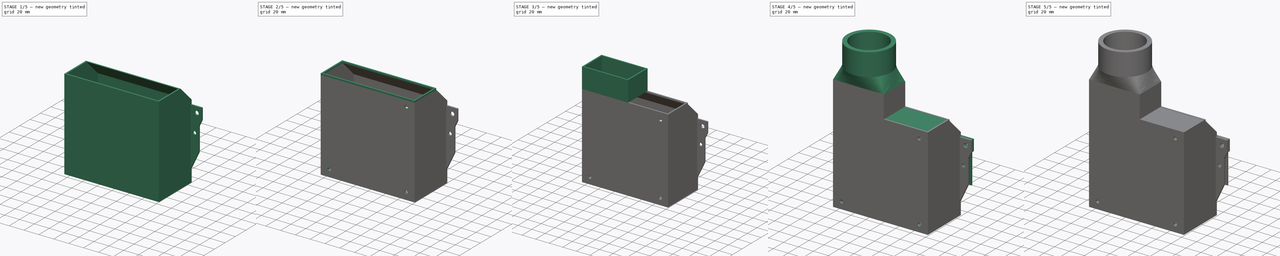
[diagram: build sequence overview — one tinted view per stage of 5, left to right]
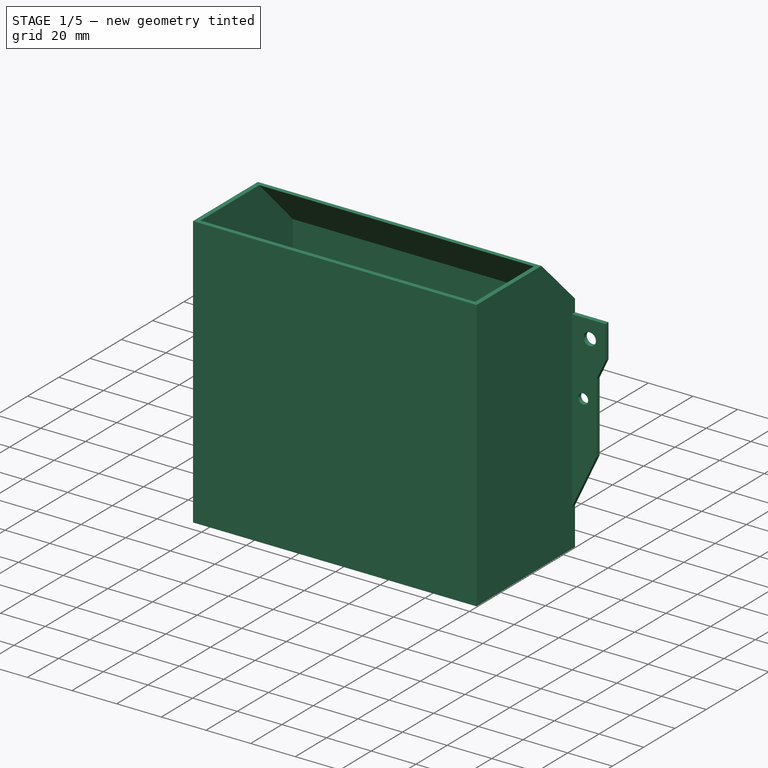
[diagram: stage 1 of 5 — iso view after this stage's code; geometry added in this stage tinted green]
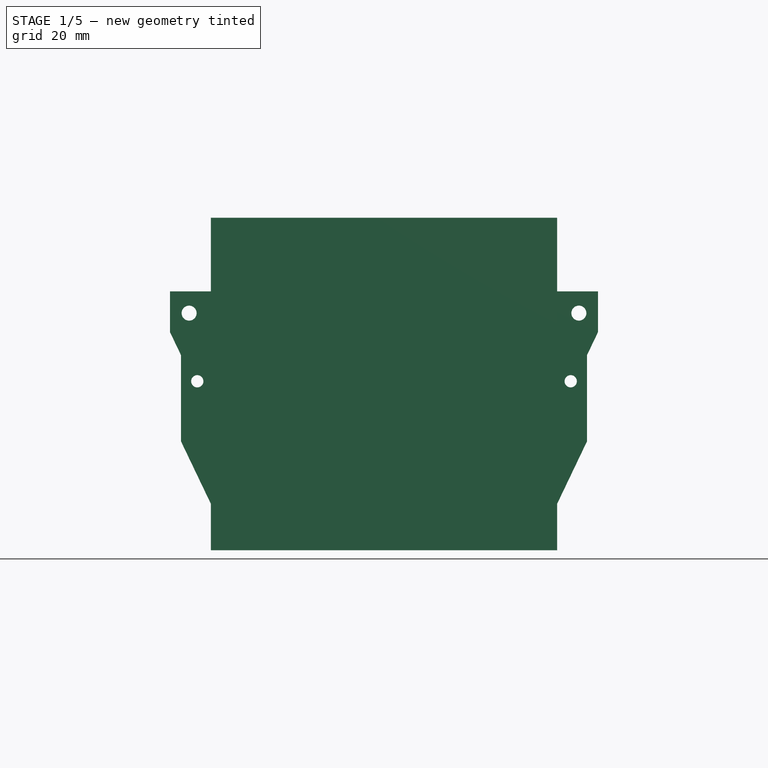
[diagram: stage 1 of 5 — front view after this stage's code; geometry added in this stage tinted green]
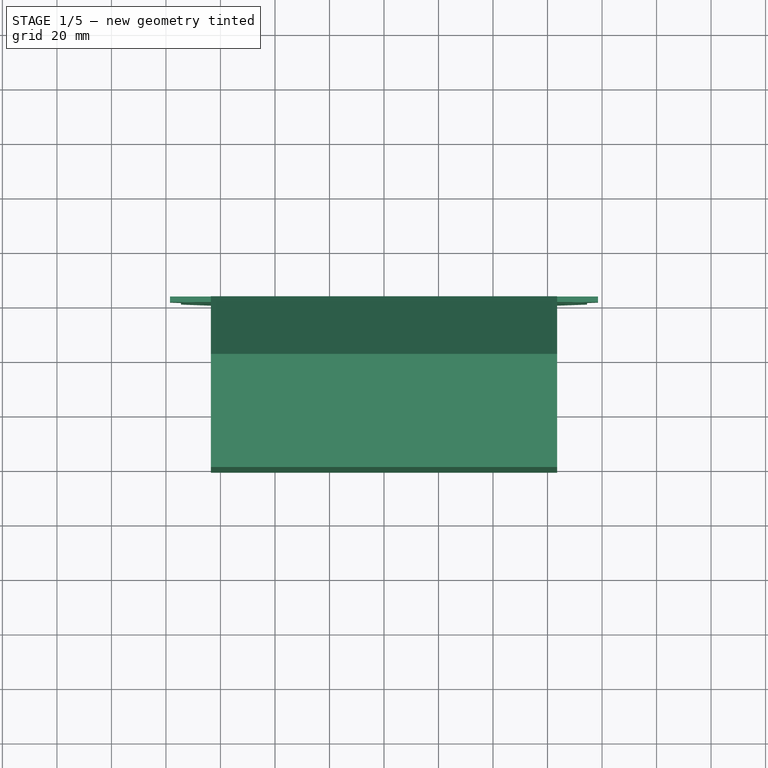
[diagram: stage 1 of 5 — top view after this stage's code; geometry added in this stage tinted green]
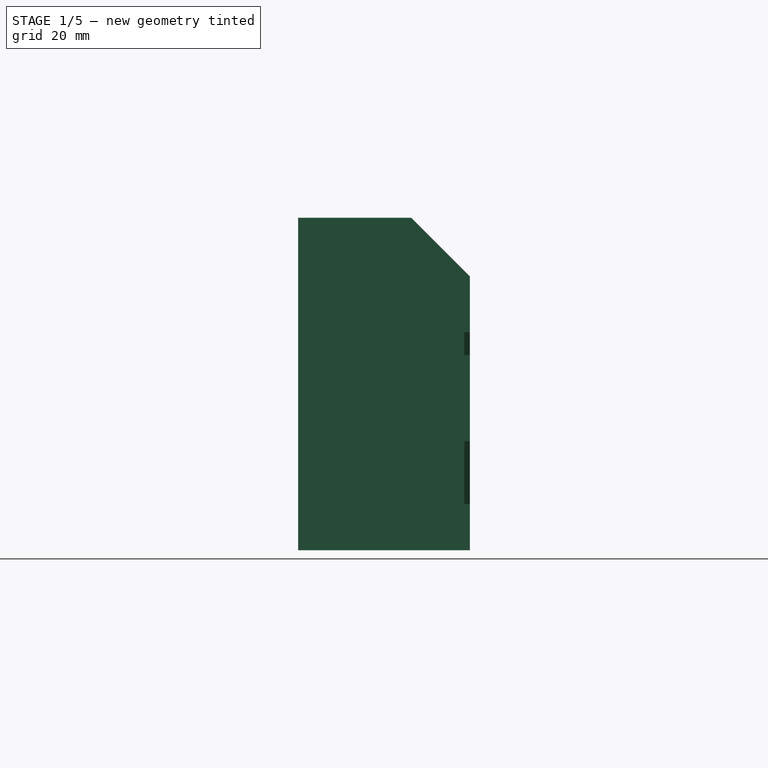
[diagram: stage 1 of 5 — right view after this stage's code; geometry added in this stage tinted green]
FCSTD DOCUMENT  (FreeCAD 0.21R33771 (Git))
Label: RadialExhaust50
License: All rights reserved
LicenseURL: http://en.wikipedia.org/wiki/All_rights_reserved
objects: Sketcher::SketchObject×23, PartDesign::Pad×15, PartDesign::Pocket×8, PartDesign::Body×6, PartDesign::Fillet×2, PartDesign::Hole×1, PartDesign::ShapeBinder×1, PartDesign::AdditiveLoft×1
note: 84 computed .brp shape members not serialized (recipe doc carries the construction recipe); baked Part::Feature solids carry a one-line shape summary decoded from their .brp

FEATURE [Sketcher::SketchObject] Sketch002  label="FanSkrewsSketch"
  AttachmentOffset = pos=(0,0,19) rot=(0,0,1;0rad)
  FullyConstrained = true
  MapMode = 5
  Placement = pos=(0,-19,-4.2e-15) rot=(1,0,0;1.5708rad)
  Support = -> [XZ_Plane]
  expr: .Constraints.top_height_offset = 119 - 7.5
  expr: .Constraints.width_offset = <<FanWallsSketch>>.Constraints.width / 2 - 7.5 mm
  sketch-geometry (3):
    g0: Circle CenterX=-52 CenterY=7.5 CenterZ=0 NormalX=0 NormalY=0 NormalZ=1 AngleXU=0 Radius=2.25
    g1: Circle CenterX=52 CenterY=7.5 CenterZ=0 NormalX=0 NormalY=0 NormalZ=1 AngleXU=0 Radius=2.25
    g2: Circle CenterX=52 CenterY=111.5 CenterZ=0 NormalX=0 NormalY=0 NormalZ=1 AngleXU=0 Radius=2.25
  constraints (8):
    c: Equal(g0,g1)
    c: Equal(g0,g2)
    c: Diameter(g0) = 4.5  'dia'
    c: DistanceX(g0,g-1) = 52  'width_offset'
    c: Symmetric(g0,g1,g-2)
    c: DistanceY(g-1,g0) = 7.5  'height_offset'
    c: Vertical(g2,g1)
    c: DistanceY(g-1,g2) = 111.5  'top_height_offset'
FEATURE [Sketcher::SketchObject] Sketch003  label="FanInntakeSketch"
  AttachmentOffset = pos=(0,0,-16.5) rot=(0,0,1;0rad)
  FullyConstrained = true
  MapMode = 5
  Placement = pos=(0,16.5,3.7e-15) rot=(1,0,0;1.5708rad)
  Support = -> [XZ_Plane]
  expr: .AttachmentOffset.Base.z = <<FanWallsSketch>>.Constraints.depth / -2
  expr: Constraints[6] = 59.5 - 14
  sketch-geometry (4):
    g0: LineSegment StartX=-45.5 StartY=106 StartZ=0 EndX=45.5 EndY=106 EndZ=0
    g1: LineSegment StartX=45.5 StartY=106 StartZ=0 EndX=45.5 EndY=15 EndZ=0
    g2: LineSegment StartX=45.5 StartY=15 StartZ=0 EndX=-45.5 EndY=15 EndZ=0
    g3: LineSegment StartX=-45.5 StartY=15 StartZ=0 EndX=-45.5 EndY=106 EndZ=0
  constraints (11):
    c: Coincident(g0,g1)
    c: Coincident(g3,g0)
    c: Horizontal(g2)
    c: Vertical(g1)
    c: Vertical(g3)
    c: Symmetric(g0,g0,g-2)
    c: DistanceX(g0,g-1) = 45.5
    c: Coincident(g2,g3)
    c: Coincident(g2,g1)
    c: DistanceY(g-1,g0) = 106
    c: DistanceY(g-1,g2) = 15
FEATURE [Sketcher::SketchObject] Sketch005  label="FloorSketch"
  FullyConstrained = true
  MapMode = 5
  Support = -> [XY_Plane001]
  expr: .Constraints.depth_offset = <<FanWallsSketch>>.Constraints.depth / 2 + 4 mm
  expr: .Constraints.width = <<FanWallsSketch>>.Constraints.width + 4 mm + 4 mm
  expr: Constraints[10] = <<FanWallsSketch>>.Constraints.depth / 2 + 4 mm + 20 mm + 2 mm
  sketch-geometry (4):
    g0: LineSegment StartX=-63.5 StartY=42.5 StartZ=0 EndX=63.5 EndY=42.5 EndZ=0
    g1: LineSegment StartX=63.5 StartY=42.5 StartZ=0 EndX=63.5 EndY=-20.5 EndZ=0
    g2: LineSegment StartX=63.5 StartY=-20.5 StartZ=0 EndX=-63.5 EndY=-20.5 EndZ=0
    g3: LineSegment StartX=-63.5 StartY=-20.5 StartZ=0 EndX=-63.5 EndY=42.5 EndZ=0
  constraints (12):
    c: Coincident(g0,g1)
    c: Coincident(g1,g2)
    c: Coincident(g2,g3)
    c: Coincident(g3,g0)
    c: Horizontal(g2)
    c: Vertical(g1)
    c: Vertical(g3)
    c: DistanceX(g0,g0) = 127  'width'
    c: Symmetric(g0,g0,g-2)
    c: DistanceY(g1,g-1) = 20.5  'depth_offset'
    c: DistanceY(g-1,g0) = 42.5
    c: DistanceY(g3,g3) = 63  'depth'
FEATURE [PartDesign::Pad] Pad002  label="FloorPad"
  Direction = (0,0,1)
  Length = 2
  Length2 = 10
  Profile = -> Sketch005
  ReferenceAxis = -> Sketch005 [N_Axis]
  Reversed = true
  Type = 0
FEATURE [Sketcher::SketchObject] Sketch006  label="WallsSketch"
  FullyConstrained = true
  MapMode = 5
  Support = -> [XY_Plane001]
  expr: .Constraints.depth = <<FloorSketch>>.Constraints.depth
  expr: Constraints[8] = <<FloorSketch>>.Constraints.depth_offset
  expr: Constraints[9] = <<FloorSketch>>.Constraints.width
  sketch-geometry (8):
    g0: LineSegment StartX=-63.5 StartY=42.5 StartZ=0 EndX=63.5 EndY=42.5 EndZ=0
    g1: LineSegment StartX=63.5 StartY=42.5 StartZ=0 EndX=63.5 EndY=-20.5 EndZ=0
    g2: LineSegment StartX=63.5 StartY=-20.5 StartZ=0 EndX=-63.5 EndY=-20.5 EndZ=0
    g3: LineSegment StartX=-63.5 StartY=-20.5 StartZ=0 EndX=-63.5 EndY=42.5 EndZ=0
    g4: LineSegment StartX=-61.5 StartY=40.5 StartZ=0 EndX=61.5 EndY=40.5 EndZ=0
    g5: LineSegment StartX=61.5 StartY=40.5 StartZ=0 EndX=61.5 EndY=-18.5 EndZ=0
    g6: LineSegment StartX=61.5 StartY=-18.5 StartZ=0 EndX=-61.5 EndY=-18.5 EndZ=0
    g7: LineSegment StartX=-61.5 StartY=-18.5 StartZ=0 EndX=-61.5 EndY=40.5 EndZ=0
  constraints (24):
    c: Coincident(g0,g1)
    c: Coincident(g1,g2)
    c: Coincident(g2,g3)
    c: Coincident(g3,g0)
    c: Horizontal(g2)
    c: Vertical(g1)
    c: Vertical(g3)
    c: Symmetric(g0,g0,g-2)
    c: DistanceY(g2,g-1) = 20.5
    c: DistanceX(g0,g0) = 127
    c: DistanceY(g1,g1) = 63  'depth'
    c: Coincident(g4,g5)
    c: Coincident(g5,g6)
    c: Coincident(g6,g7)
    c: Coincident(g7,g4)
    c: Horizontal(g4)
    c: Horizontal(g6)
    c: Vertical(g5)
    c: Vertical(g7)
    c: DistanceX(g0,g4) = 2
    c: DistanceY(g4,g0) = 2
    c: DistanceY(g1,g5) = 2
    c: DistanceX(g5,g1) = 2
    c: DistanceX(g4,g4) = 123
FEATURE [PartDesign::Pad] Pad003  label="WallsPad"
  BaseFeature = -> Pad002
  Direction = (0,0,1)
  Length = 120
  Length2 = 10
  Profile = -> Sketch006
  ReferenceAxis = -> Sketch006 [N_Axis]
  Type = 0
FEATURE [Sketcher::SketchObject] Sketch007  label="CornerCutSketch"
  FullyConstrained = true
  MapMode = 5
  Placement = pos=(0,0,0) rot=(0.57735,0.57735,0.57735;2.0944rad)
  Support = -> [YZ_Plane001]
  expr: .Constraints.corner_width = <<WallsSketch>>.Constraints.depth - 4 mm - 37 mm
  expr: Constraints[8] = .Constraints.corner_width
  sketch-geometry (3):
    g0: LineSegment StartX=43 StartY=120 StartZ=0 EndX=21 EndY=120 EndZ=0
    g1: LineSegment StartX=21 StartY=120 StartZ=0 EndX=43 EndY=98 EndZ=0
    g2: LineSegment StartX=43 StartY=98 StartZ=0 EndX=43 EndY=120 EndZ=0
  constraints (9):
    c: Horizontal(g0)
    c: Coincident(g0,g1)
    c: Coincident(g1,g2)
    c: Coincident(g2,g0)
    c: Vertical(g2)
    c: DistanceX(g-1,g0) = 43  'corner_width_offset'
    c: DistanceY(g-1,g0) = 120  'corner_height_offset'
    c: DistanceX(g0,g0) = 22  'corner_width'
    c: DistanceY(g2,g2) = 22
FEATURE [PartDesign::Pocket] Pocket003  label="CornerCut"
  BaseFeature = -> Pad003
  Direction = (-1,2e-16,-3e-16)
  Length = 150
  Length2 = 5
  Midplane = true
  Profile = -> Sketch007
  ReferenceAxis = -> Sketch007 [N_Axis]
  Type = 0
FEATURE [Sketcher::SketchObject] Sketch008  label="CornerPadSketch"
  FullyConstrained = true
  MapMode = 5
  Placement = pos=(0,0,0) rot=(0.57735,0.57735,0.57735;2.0944rad)
  Support = -> [YZ_Plane001]
  expr: Constraints[10] = <<CornerCutSketch>>.Constraints.corner_height_offset
  expr: Constraints[11] = <<CornerCutSketch>>.Constraints.corner_width_offset
  expr: Constraints[12] = <<CornerCutSketch>>.Constraints.corner_width
  expr: Constraints[13] = <<CornerCutSketch>>.Constraints.corner_width
  sketch-geometry (5):
    g0: LineSegment StartX=21 StartY=120 StartZ=0 EndX=42.5 EndY=98 EndZ=0
    g1: LineSegment StartX=42.5 StartY=98 StartZ=0 EndX=42.5 EndY=96 EndZ=0
    g2: LineSegment StartX=42.5 StartY=96 StartZ=0 EndX=19 EndY=120 EndZ=0
    g3: LineSegment StartX=19 StartY=120 StartZ=0 EndX=21 EndY=120 EndZ=0
    g4: GeomPoint X=43 Y=120 Z=0
  constraints (14):
    c: Coincident(g0,g1)
    c: Vertical(g1)
    c: Coincident(g1,g2)
    c: Coincident(g2,g3)
    c: Coincident(g3,g0)
    c: Horizontal(g3)
    c: DistanceY(g-1,g0) = 120
    c: DistanceX(g-1,g0) = 42.5
    c: DistanceX(g3,g3) = 2
    c: DistanceY(g1,g1) = 2
    c: DistanceY(g-1,g4) = 120
    c: DistanceX(g-1,g4) = 43
    c: DistanceX(g0,g4) = 22
    c: DistanceY(g0,g4) = 22
FEATURE [PartDesign::Pad] Pad004  label="CornerPad"
  BaseFeature = -> Pocket003
  Direction = (1,-2e-16,3e-16)
  Length = 127
  Length2 = 10
  Midplane = true
  Profile = -> Sketch008
  ReferenceAxis = -> Sketch008 [N_Axis]
  Type = 0
FEATURE [PartDesign::Pad] Pad009  label="Connector"
  BaseFeature = -> Pad004
  Direction = (0,-1,-2e-16)
  Length = 2
  Length2 = 10
  Profile = -> Sketch010
  ReferenceAxis = -> Sketch010 [N_Axis]
  Type = 0
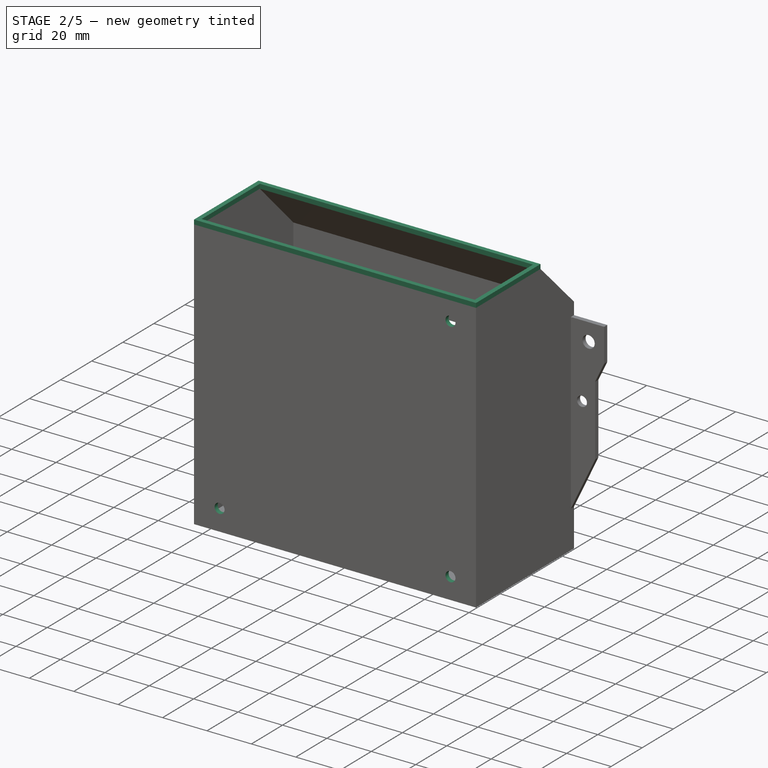
[diagram: stage 2 of 5 — iso view after this stage's code; geometry added in this stage tinted green]
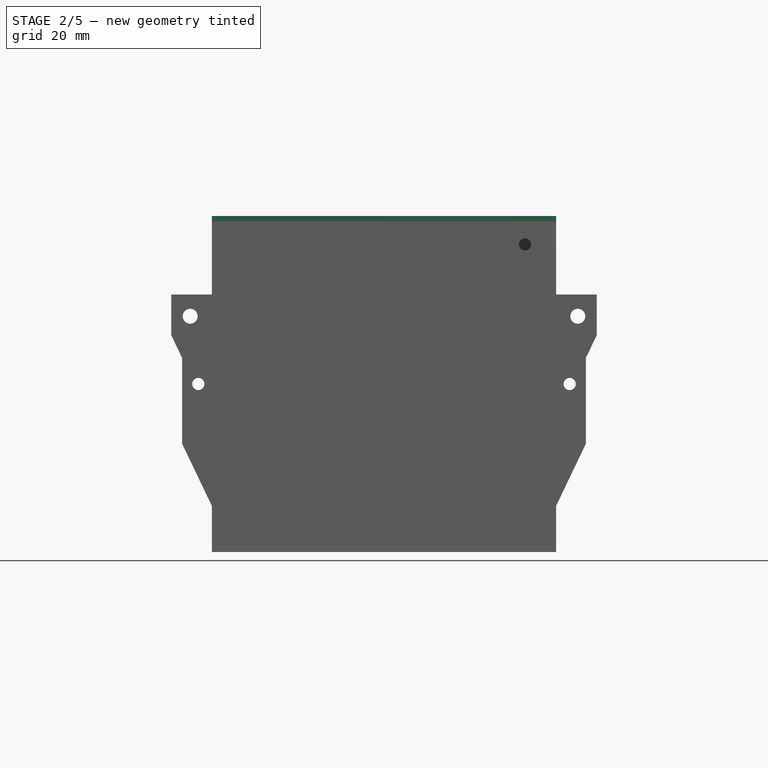
[diagram: stage 2 of 5 — front view after this stage's code; geometry added in this stage tinted green]
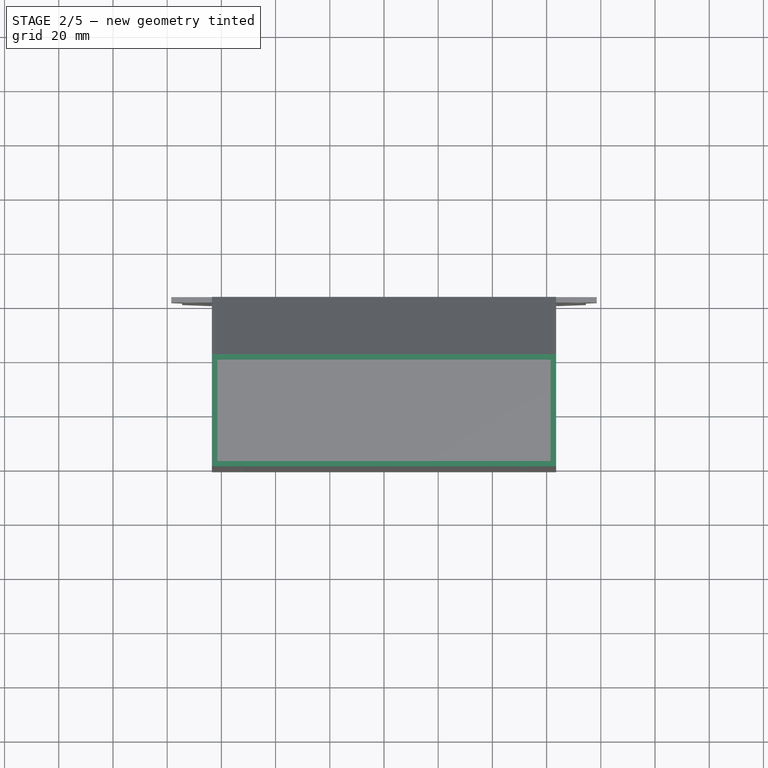
[diagram: stage 2 of 5 — top view after this stage's code; geometry added in this stage tinted green]
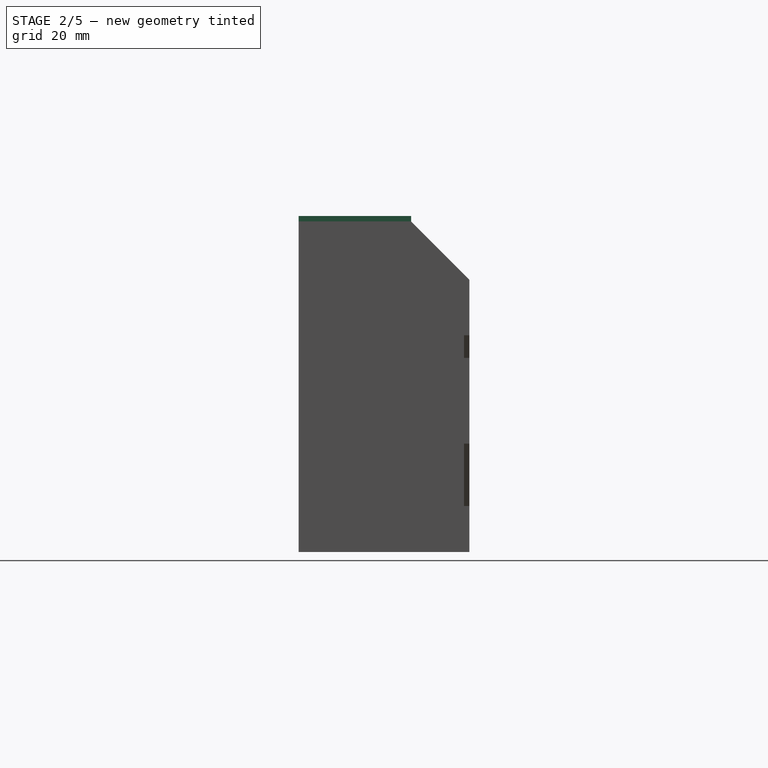
[diagram: stage 2 of 5 — right view after this stage's code; geometry added in this stage tinted green]
FEATURE [PartDesign::Pocket] Pocket005  label="Skrewhole"
  BaseFeature = -> Pad009
  Direction = (0,1,2e-16)
  Length = 4
  Length2 = 5
  Profile = -> Sketch011
  ReferenceAxis = -> Sketch011 [N_Axis]
  Type = 0
FEATURE [PartDesign::Pocket] Pocket007  label="BowdenSkrew"
  BaseFeature = -> Pocket005
  Direction = (-1,2e-16,-3e-16)
  Length = 5
  Length2 = 5
  Midplane = true
  Profile = -> Sketch014
  ReferenceAxis = -> Sketch014 [N_Axis]
  Type = 0
FEATURE [PartDesign::Fillet] Fillet
  Base = -> Pocket007
  BaseFeature = -> Pocket007
  Radius = 1
  SupportTransform = false
  UseAllEdges = false
FEATURE [Sketcher::SketchObject] Sketch023  label="ConnectorWindow"
  FullyConstrained = true
  MapMode = 5
  Placement = pos=(0,42.5,0) rot=(0,0.707107,0.707107;3.14159rad)
  sketch-geometry (5):
    g0: LineSegment StartX=-61.5 StartY=77 StartZ=0 EndX=-61.5 EndY=43 EndZ=0
    g1: LineSegment StartX=-61.5 StartY=43 StartZ=0 EndX=61.5 EndY=43 EndZ=0
    g2: LineSegment StartX=61.5 StartY=43 StartZ=0 EndX=61.5 EndY=77 EndZ=0
    g3: LineSegment StartX=61.5 StartY=77 StartZ=0 EndX=-61.5 EndY=77 EndZ=0
    g4: GeomPoint X=0 Y=60 Z=0
  constraints (13):
    c: Coincident(g0,g1)
    c: Coincident(g1,g2)
    c: Coincident(g2,g3)
    c: Coincident(g3,g0)
    c: Horizontal(g1)
    c: Horizontal(g3)
    c: Vertical(g0)
    c: Vertical(g2)
    c: Symmetric(g1,g0,g4)
    c: PointOnObject(g4,g-2)
    c: DistanceY(g0,g0) = 34
    c: DistanceY(g-1,g0) = 43
    c: DistanceX(g3,g3) = 123  'width'
FEATURE [PartDesign::Pocket] Pocket010
  BaseFeature = -> Fillet
  Direction = (0,-1,2e-16)
  Length = 4
  Length2 = 5
  Profile = -> Sketch023
  ReferenceAxis = -> Sketch023 [N_Axis]
  Type = 0
FEATURE [Sketcher::SketchObject] Sketch028
  FullyConstrained = true
  MapMode = 5
  Support = -> [Pocket010]
  sketch-geometry (1):
    g0: Circle CenterX=0 CenterY=30 CenterZ=0 NormalX=0 NormalY=0 NormalZ=1 AngleXU=0 Radius=6.5
  constraints (3):
    c: PointOnObject(g0,g-2)
    c: Diameter(g0) = 13
    c: DistanceY(g-1,g0) = 30
FEATURE [PartDesign::Pocket] Pocket011
  BaseFeature = -> Pocket010
  Direction = (0,0,-1)
  Length = 5
  Length2 = 5
  Profile = -> Sketch028
  ReferenceAxis = -> Sketch028 [N_Axis]
  Type = 0
FEATURE [PartDesign::Body] Body005  label="PipeAttachement"
  Group = -> [ShapeBinder,Sketch030,Pad013,Sketch031,AdditiveLoft,Pad014]
  Origin = -> Origin006
  Tip = -> Pad014
FEATURE [PartDesign::Pad] Pad015
  BaseFeature = -> Pocket011
  Direction = (0,0,1)
  Length = 2
  Length2 = 10
  Profile = -> Pocket011 [Face54,Face20,Face61,Face55]
  Type = 0
FEATURE [PartDesign::Body] Body001  label="ConnectorBody"
  Group = -> [Sketch005,Pad002,Sketch006,Pad003,Sketch007,Pocket003,Sketch008,Pad004,Pad009,Sketch010,Sketch011,Pocket005,Sketch014,Pocket007,Fillet,Sketch023,Pocket010,Sketch028,Pocket011,Pad015]
  Origin = -> Origin001
  Tip = -> Pad015
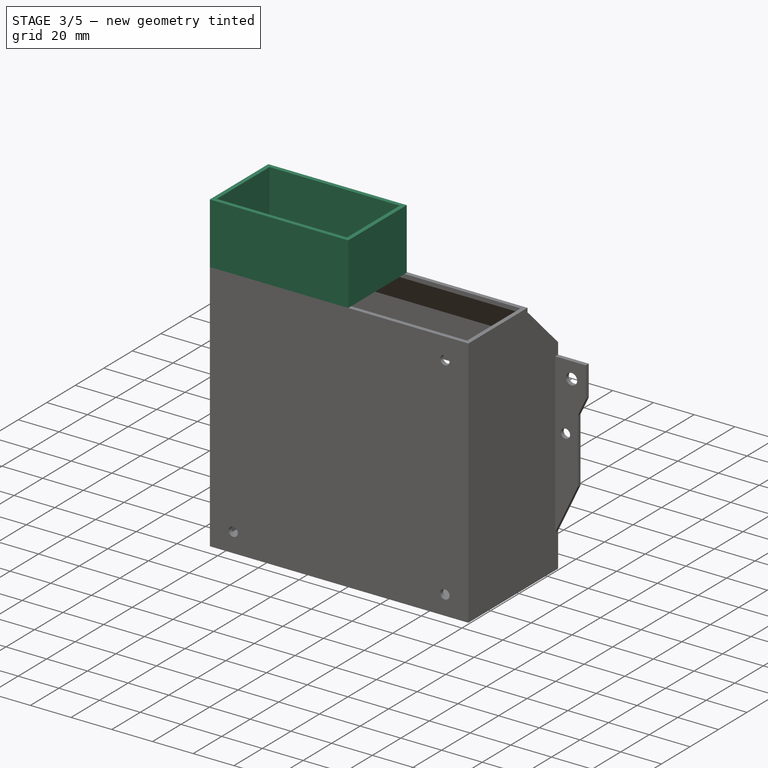
[diagram: stage 3 of 5 — iso view after this stage's code; geometry added in this stage tinted green]
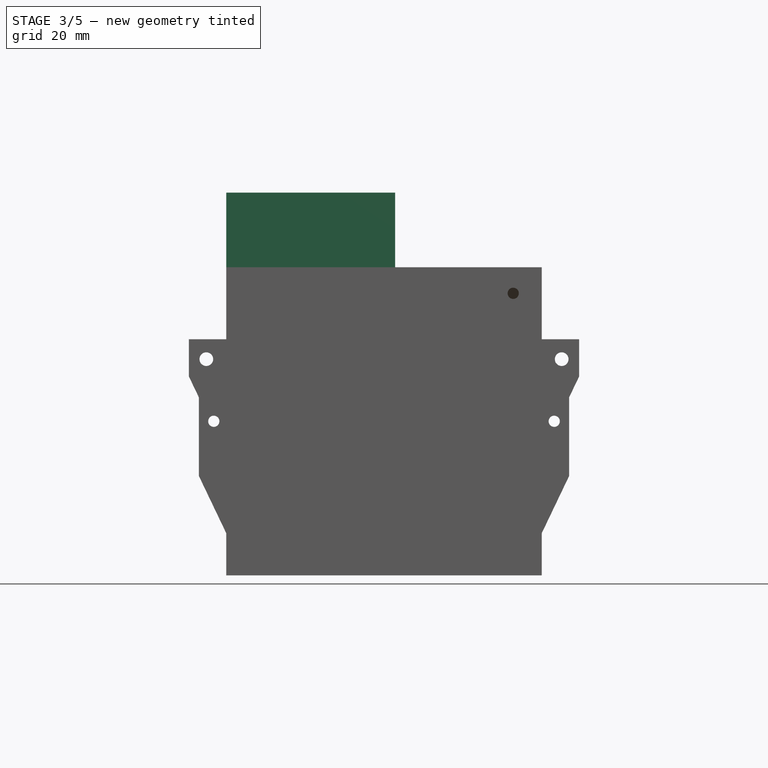
[diagram: stage 3 of 5 — front view after this stage's code; geometry added in this stage tinted green]
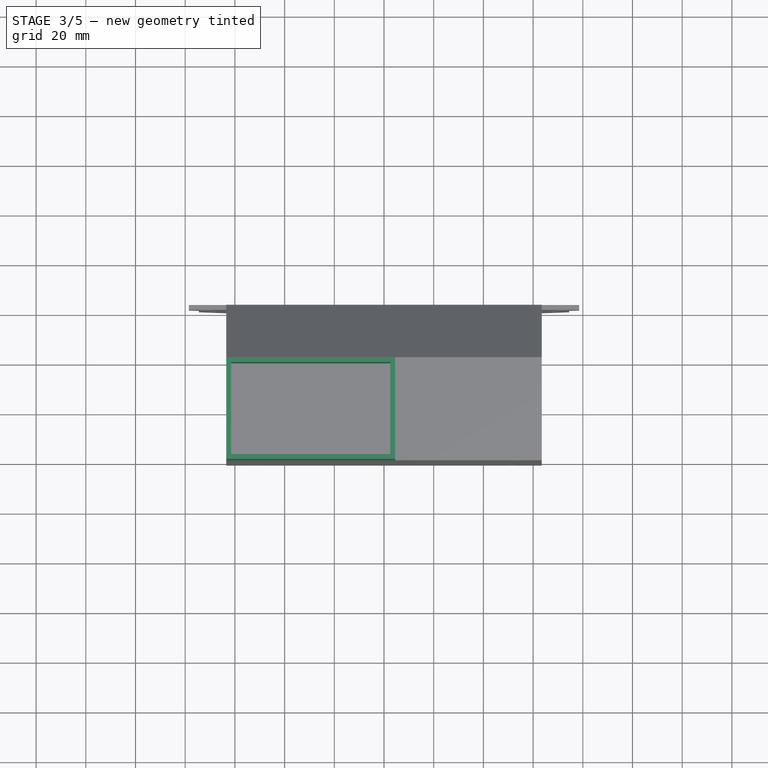
[diagram: stage 3 of 5 — top view after this stage's code; geometry added in this stage tinted green]
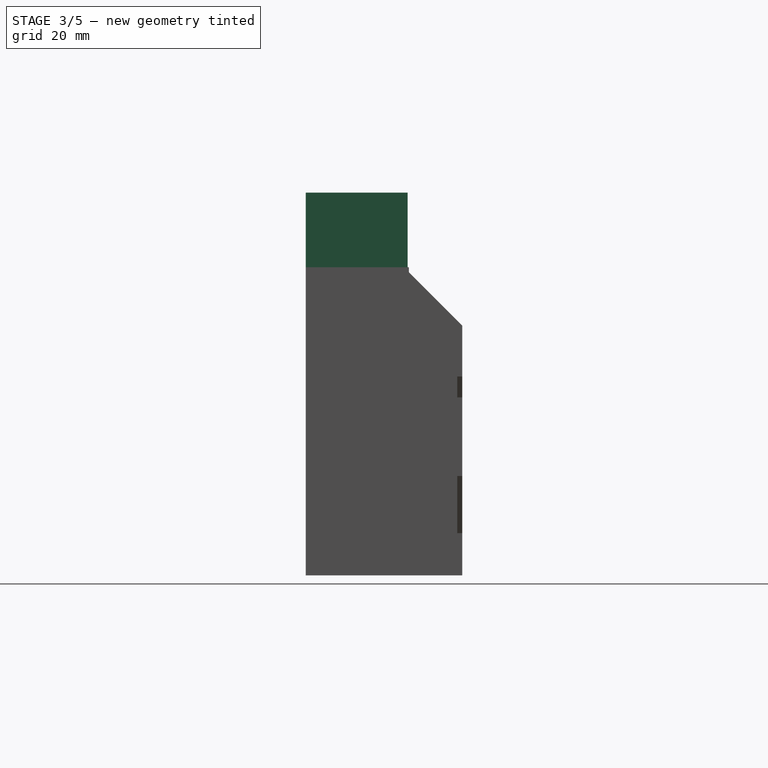
[diagram: stage 3 of 5 — right view after this stage's code; geometry added in this stage tinted green]
FEATURE [Sketcher::SketchObject] Sketch  label="FanWallsSketch"
  FullyConstrained = true
  MapMode = 5
  Support = -> [XY_Plane]
  expr: Constraints[23] = .Constraints.brim
  sketch-geometry (10):
    g0: LineSegment StartX=-59.5 StartY=16.5 StartZ=0 EndX=-59.5 EndY=-16.5 EndZ=0
    g1: LineSegment StartX=-59.5 StartY=-16.5 StartZ=0 EndX=59.5 EndY=-16.5 EndZ=0
    g2: LineSegment StartX=59.5 StartY=-16.5 StartZ=0 EndX=59.5 EndY=16.5 EndZ=0
    g3: LineSegment StartX=59.5 StartY=16.5 StartZ=0 EndX=-59.5 EndY=16.5 EndZ=0
    g4: GeomPoint X=0 Y=0 Z=0
    g5: LineSegment StartX=-61.5 StartY=18.5 StartZ=0 EndX=-61.5 EndY=-18.5 EndZ=0
    g6: LineSegment StartX=-61.5 StartY=-18.5 StartZ=0 EndX=61.5 EndY=-18.5 EndZ=0
    g7: LineSegment StartX=61.5 StartY=-18.5 StartZ=0 EndX=61.5 EndY=18.5 EndZ=0
    g8: LineSegment StartX=61.5 StartY=18.5 StartZ=0 EndX=-61.5 EndY=18.5 EndZ=0
    g9: GeomPoint X=0 Y=0 Z=0
  constraints (24):
    c: Coincident(g0,g1)
    c: Coincident(g1,g2)
    c: Coincident(g2,g3)
    c: Coincident(g3,g0)
    c: Horizontal(g1)
    c: Horizontal(g3)
    c: Vertical(g0)
    c: Vertical(g2)
    c: Symmetric(g1,g0,g4)
    c: Coincident(g4,g-1)
    c: DistanceX(g3,g3) = 119  'width'
    c: DistanceY(g0,g0) = 33  'depth'
    c: Coincident(g5,g6)
    c: Coincident(g6,g7)
    c: Coincident(g7,g8)
    c: Coincident(g8,g5)
    c: Horizontal(g6)
    c: Horizontal(g8)
    c: Vertical(g5)
    c: Vertical(g7)
    c: Symmetric(g6,g5,g9)
    c: Coincident(g9,g4)
    c: DistanceX(g5,g0) = 2  'brim'
    c: DistanceY(g0,g5) = 2
FEATURE [PartDesign::Pad] Pad001  label="Walls"
  Direction = (0,0,1)
  Length = 120
  Length2 = 10
  Profile = -> Sketch
  ReferenceAxis = -> Sketch [N_Axis]
  Type = 0
FEATURE [PartDesign::Body] Body003  label="BowdenAttachment"
  Group = -> [Sketch015,Pad007,Sketch016,Pad008,Sketch018,Hole,Fillet001]
  Origin = -> Origin004
  Tip = -> Fillet001
FEATURE [PartDesign::Pocket] Pocket001  label="FanInntake"
  AlongSketchNormal = false
  BaseFeature = -> Pad001
  Direction = (0,1,2e-16)
  Length = 5
  Length2 = 5
  Profile = -> Sketch003
  ReferenceAxis = -> Sketch003 [N_Axis]
  Type = 0
FEATURE [PartDesign::Pocket] Pocket  label="FanSkrews"
  BaseFeature = -> Pocket001
  Direction = (0,1,2e-16)
  Length = 4
  Length2 = 5
  Profile = -> Sketch002
  ReferenceAxis = -> Sketch002 [N_Axis]
  Type = 0
FEATURE [PartDesign::Body] Body004  label="Body"
  Group = -> [Sketch025,Pad011]
  Origin = -> Origin005
  Tip = -> Pad011
FEATURE [Sketcher::SketchObject] Sketch026  label="TopSketch"
  ExternalGeometry = -> [Pocket]
  FullyConstrained = true
  MapMode = 5
  Placement = pos=(0,0,120) rot=(0,0,1;0rad)
  Support = -> [Pocket]
  sketch-geometry (8):
    g0: LineSegment StartX=-59.5 StartY=16.5 StartZ=0 EndX=0.5 EndY=16.5 EndZ=0
    g1: LineSegment StartX=0.5 StartY=16.5 StartZ=0 EndX=0.5 EndY=-16.5 EndZ=0
    g2: LineSegment StartX=0.5 StartY=-16.5 StartZ=0 EndX=-59.5 EndY=-16.5 EndZ=0
    g3: LineSegment StartX=-59.5 StartY=-16.5 StartZ=0 EndX=-59.5 EndY=16.5 EndZ=0
    g4: LineSegment StartX=-61.5 StartY=18.5 StartZ=0 EndX=61.5 EndY=18.5 EndZ=0
    g5: LineSegment StartX=61.5 StartY=18.5 StartZ=0 EndX=61.5 EndY=-18.5 EndZ=0
    g6: LineSegment StartX=61.5 StartY=-18.5 StartZ=0 EndX=-61.5 EndY=-18.5 EndZ=0
    g7: LineSegment StartX=-61.5 StartY=-18.5 StartZ=0 EndX=-61.5 EndY=18.5 EndZ=0
  constraints (21):
    c: Coincident(g0,g1)
    c: Coincident(g1,g2)
    c: Coincident(g2,g3)
    c: Coincident(g3,g0)
    c: Horizontal(g0)
    c: Horizontal(g2)
    c: Vertical(g1)
    c: Vertical(g3)
    c: Coincident(g0,g-4)
    c: PointOnObject(g1,g-6)
    c: Coincident(g4,g5)
    c: Coincident(g5,g6)
    c: Coincident(g6,g7)
    c: Coincident(g7,g4)
    c: Horizontal(g4)
    c: Horizontal(g6)
    c: Vertical(g5)
    c: Vertical(g7)
    c: Coincident(g4,g-5)
    c: DistanceX(g0,g0) = 60
    c: Coincident(g5,g-7)
FEATURE [PartDesign::Pad] Pad  label="TopPad"
  BaseFeature = -> Pocket
  Direction = (0,0,1)
  Length = 2
  Length2 = 10
  Profile = -> Sketch026
  ReferenceAxis = -> Sketch026 [N_Axis]
  Type = 0
FEATURE [PartDesign::Body] Body  label="FanBody"
  Group = -> [Sketch,Pad001,Sketch002,Sketch003,Pocket001,Pocket,Sketch026,Pad,Sketch029,Pad012]
  Origin = -> Origin
  Tip = -> Pad012
FEATURE [PartDesign::ShapeBinder] ShapeBinder
  Placement = pos=(0,0,122) rot=(0,0,1;0rad)
  Support = -> [Sketch029]
  TraceSupport = false
FEATURE [Sketcher::SketchObject] Sketch030
  AttachmentOffset = pos=(0,0,122) rot=(0,0,1;0rad)
  ExternalGeometry = -> [ShapeBinder]
  FullyConstrained = true
  MapMode = 5
  Placement = pos=(0,0,122) rot=(0,0,1;0rad)
  Support = -> [XY_Plane006]
  sketch-geometry (8):
    g0: LineSegment StartX=-61.5 StartY=18.5 StartZ=0 EndX=2.5 EndY=18.5 EndZ=0
    g1: LineSegment StartX=2.5 StartY=18.5 StartZ=0 EndX=2.5 EndY=-18.5 EndZ=0
    g2: LineSegment StartX=2.5 StartY=-18.5 StartZ=0 EndX=-61.5 EndY=-18.5 EndZ=0
    g3: LineSegment StartX=-61.5 StartY=-18.5 StartZ=0 EndX=-61.5 EndY=18.5 EndZ=0
    g4: LineSegment StartX=-63.5 StartY=20.5 StartZ=0 EndX=4.5 EndY=20.5 EndZ=0
    g5: LineSegment StartX=4.5 StartY=20.5 StartZ=0 EndX=4.5 EndY=-20.5 EndZ=0
    g6: LineSegment StartX=4.5 StartY=-20.5 StartZ=0 EndX=-63.5 EndY=-20.5 EndZ=0
    g7: LineSegment StartX=-63.5 StartY=-20.5 StartZ=0 EndX=-63.5 EndY=20.5 EndZ=0
  constraints (22):
    c: Coincident(g0,g1)
    c: Coincident(g1,g2)
    c: Coincident(g2,g3)
    c: Coincident(g3,g0)
    c: Horizontal(g0)
    c: Horizontal(g2)
    c: Vertical(g1)
    c: Vertical(g3)
    c: Coincident(g0,g-3)
    c: Coincident(g1,g-4)
    c: Coincident(g4,g5)
    c: Coincident(g5,g6)
    c: Coincident(g6,g7)
    c: Coincident(g7,g4)
    c: Horizontal(g4)
    c: Horizontal(g6)
    c: Vertical(g5)
    c: Vertical(g7)
    c: DistanceX(g4,g0) = 2
    c: DistanceY(g0,g4) = 2
    c: DistanceY(g5,g1) = 2
    c: DistanceX(g1,g5) = 2
FEATURE [PartDesign::Pad] Pad013
  Direction = (0,0,1)
  Length = 30
  Length2 = 10
  Profile = -> Sketch030
  ReferenceAxis = -> Sketch030 [N_Axis]
  Type = 0
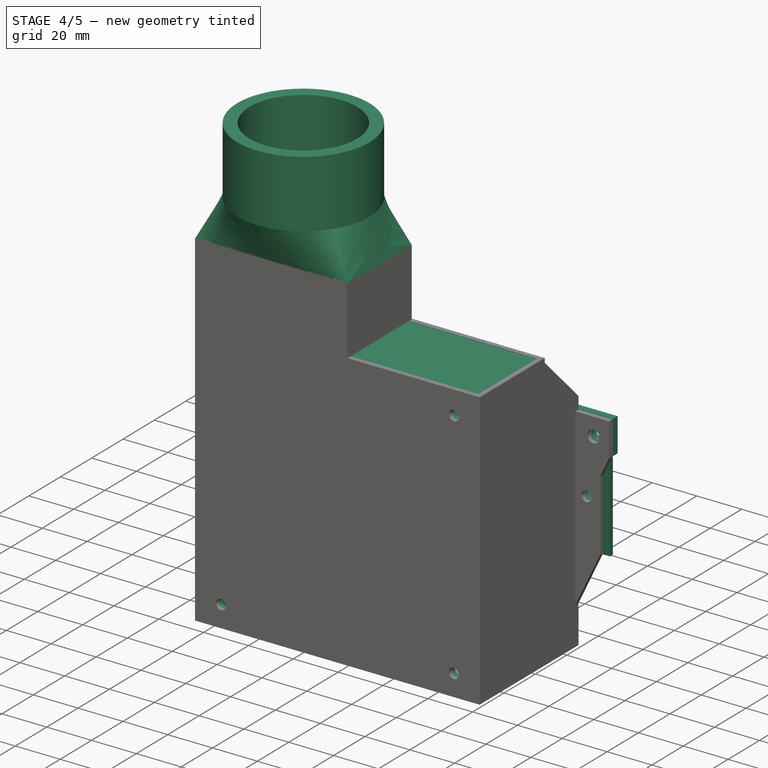
[diagram: stage 4 of 5 — iso view after this stage's code; geometry added in this stage tinted green]
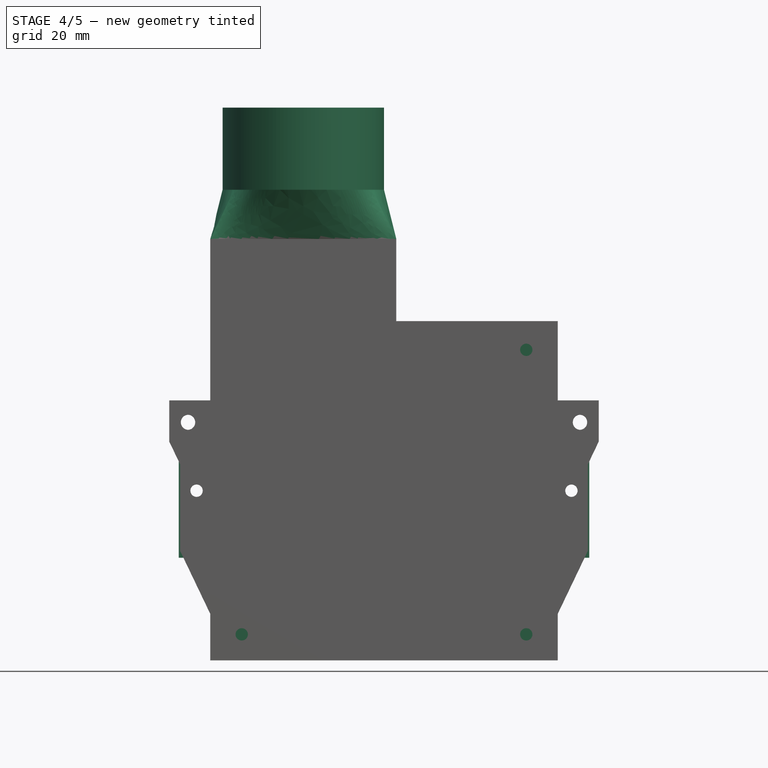
[diagram: stage 4 of 5 — front view after this stage's code; geometry added in this stage tinted green]
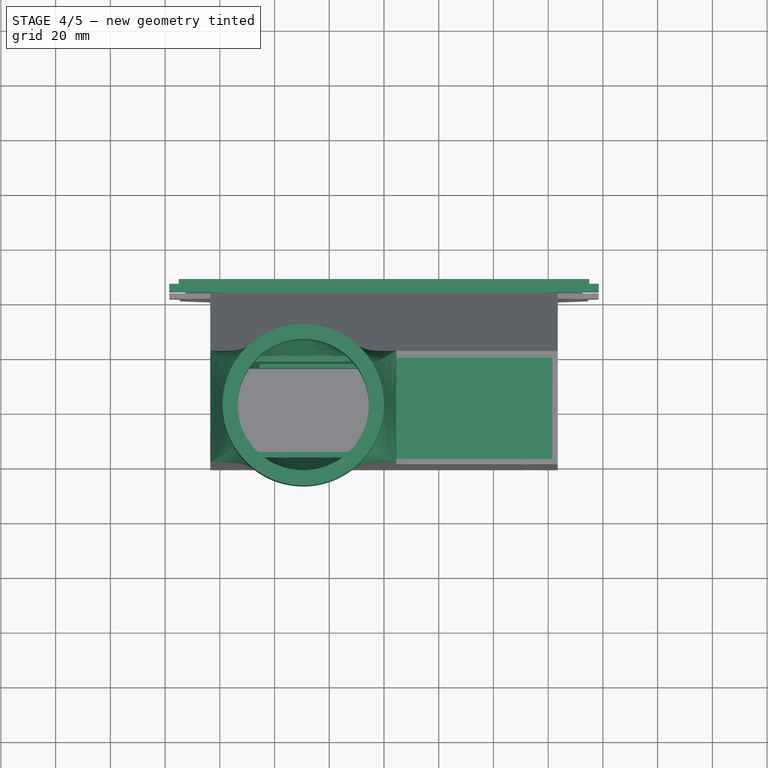
[diagram: stage 4 of 5 — top view after this stage's code; geometry added in this stage tinted green]
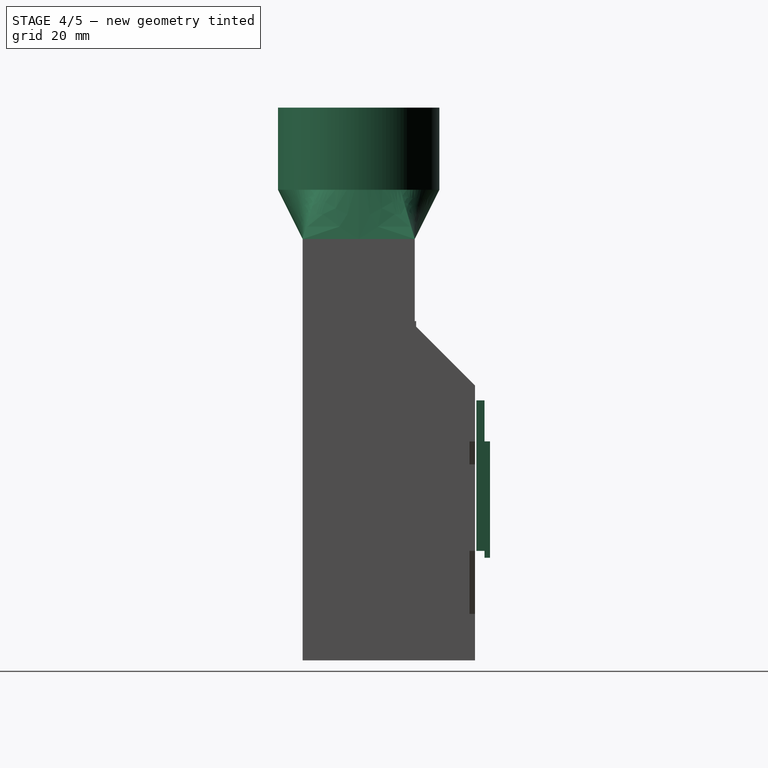
[diagram: stage 4 of 5 — right view after this stage's code; geometry added in this stage tinted green]
FEATURE [Sketcher::SketchObject] Sketch010  label="ConnectorSketch"
  AttachmentOffset = pos=(0,0,-42.5) rot=(0,0,1;0rad)
  FullyConstrained = true
  MapMode = 5
  Placement = pos=(0,42.5,9.4e-15) rot=(1,0,0;1.5708rad)
  Support = -> [XZ_Plane001]
  expr: Constraints[36] = <<ConnectorTapSketch>>.Constraints.bottomWidth + 4 mm
  expr: Constraints[41] = <<ConnectorTapSketch>>.Constraints.earFlipheight
  sketch-geometry (16):
    g0: LineSegment StartX=-78.5 StartY=93 StartZ=0 EndX=78.5 EndY=93 EndZ=0
    g1: LineSegment StartX=74.5 StartY=38 StartZ=0 EndX=63.5 EndY=15 EndZ=0
    g2: LineSegment StartX=-74.5 StartY=38 StartZ=0 EndX=-63.5 EndY=15 EndZ=0
    g3: Circle CenterX=-68.5 CenterY=60 CenterZ=0 NormalX=0 NormalY=0 NormalZ=1 AngleXU=0 Radius=2.25
    g4: Circle CenterX=68.5 CenterY=60 CenterZ=0 NormalX=0 NormalY=0 NormalZ=1 AngleXU=0 Radius=2.25
    g5: Circle CenterX=-71.5 CenterY=85 CenterZ=0 NormalX=0 NormalY=0 NormalZ=1 AngleXU=0 Radius=2.75
    g6: Circle CenterX=71.5 CenterY=85 CenterZ=0 NormalX=0 NormalY=0 NormalZ=1 AngleXU=0 Radius=2.75
    g7: LineSegment StartX=-63.5 StartY=15 StartZ=0 EndX=-63.5 EndY=0 EndZ=0
    g8: LineSegment StartX=63.5 StartY=15 StartZ=0 EndX=63.5 EndY=0 EndZ=0
    g9: LineSegment StartX=63.5 StartY=0 StartZ=0 EndX=-63.5 EndY=0 EndZ=0
    g10: LineSegment StartX=-78.5 StartY=93 StartZ=0 EndX=-78.5 EndY=78 EndZ=0
    g11: LineSegment StartX=-78.5 StartY=78 StartZ=0 EndX=-74.5 EndY=69.6364 EndZ=0
    g12: LineSegment StartX=-74.5 StartY=69.6364 StartZ=0 EndX=-74.5 EndY=38 EndZ=0
    g13: LineSegment StartX=78.5 StartY=93 StartZ=0 EndX=78.5 EndY=78 EndZ=0
    g14: LineSegment StartX=78.5 StartY=78 StartZ=0 EndX=74.5 EndY=69.6364 EndZ=0
    g15: LineSegment StartX=74.5 StartY=69.6364 StartZ=0 EndX=74.5 EndY=38 EndZ=0
  constraints (43):
    c: DistanceX(g0,g0) = 157
    c: Symmetric(g0,g0,g-2)
    c: DistanceY(g-1,g2) = 15
    c: DistanceY(g1,g0) = 78
    c: Symmetric(g2,g1,g-2)
    c: DistanceX(g2,g1) = 127
    c: Symmetric(g2,g1,g-2)
    c: Diameter(g3) = 4.5
    c: Diameter(g4) = 4.5
    c: Symmetric(g3,g4,g-2)
    c: DistanceX(g3,g4) = 137
    c: DistanceY(g-1,g3) = 60
    c: Symmetric(g5,g6,g-2)
    c: Diameter(g5) = 5.5
    c: Diameter(g6) = 5.5
    c: DistanceX(g5,g3) = 3
    c: DistanceY(g4,g6) = 25
    c: DistanceY(g1,g0) = 55
    c: Coincident(g7,g2)
    c: PointOnObject(g7,g-1)
    c: Vertical(g7)
    c: Coincident(g8,g1)
    c: PointOnObject(g8,g-1)
    c: Vertical(g8)
    c: Coincident(g9,g8)
    c: Coincident(g9,g7)
    c: Coincident(g0,g10)
    c: Vertical(g10)
    c: Coincident(g10,g11)
    c: Coincident(g11,g12)
    c: Coincident(g12,g2)
    c: Coincident(g0,g13)
    c: Vertical(g13)
    c: Coincident(g13,g14)
    c: Coincident(g14,g15)
    c: Coincident(g15,g1)
    c: DistanceX(g2,g1) = 149
    c: Parallel(g2,g11)
    c: Vertical(g12)
    c: Vertical(g15)
    c: Horizontal(g10,g13)
    c: DistanceY(g10,g0) = 15
    c: Horizontal(g11,g14)
FEATURE [Sketcher::SketchObject] Sketch011  label="SkrewHoleSketch"
  AttachmentOffset = pos=(0,0,21) rot=(0,0,1;0rad)
  FullyConstrained = true
  MapMode = 5
  Placement = pos=(0,-21,-4.7e-15) rot=(1,0,0;1.5708rad)
  Support = -> [XZ_Plane001]
  expr: Constraints[2] = <<FanSkrewsSketch>>.Constraints.dia
  expr: Constraints[3] = <<FanSkrewsSketch>>.Constraints.height_offset
  expr: Constraints[6] = <<FanSkrewsSketch>>.Constraints.top_height_offset
  expr: Constraints[7] = <<FanSkrewsSketch>>.Constraints.width_offset
  sketch-geometry (3):
    g0: Circle CenterX=52 CenterY=111.5 CenterZ=0 NormalX=0 NormalY=0 NormalZ=1 AngleXU=0 Radius=2.25
    g1: Circle CenterX=52 CenterY=7.5 CenterZ=0 NormalX=0 NormalY=0 NormalZ=1 AngleXU=0 Radius=2.25
    g2: Circle CenterX=-52 CenterY=7.5 CenterZ=0 NormalX=0 NormalY=0 NormalZ=1 AngleXU=0 Radius=2.25
  constraints (8):
    c: Equal(g2,g1)
    c: Equal(g2,g0)
    c: Diameter(g2) = 4.5
    c: DistanceY(g-1,g2) = 7.5
    c: Symmetric(g1,g2,g-2)
    c: Vertical(g0,g1)
    c: DistanceY(g-1,g0) = 111.5
    c: DistanceX(g2,g-1) = 52
FEATURE [Sketcher::SketchObject] Sketch012  label="ConnectorTapSketch"
  AttachmentOffset = pos=(0,0,-43) rot=(0,0,1;0rad)
  FullyConstrained = true
  MapMode = 5
  Placement = pos=(0,43,9.5e-15) rot=(1,0,0;1.5708rad)
  Support = -> [XZ_Plane003]
  sketch-geometry (16):
    g0: LineSegment StartX=-78.5 StartY=93 StartZ=0 EndX=78.5 EndY=93 EndZ=0
    g1: LineSegment StartX=72.5 StartY=38 StartZ=0 EndX=-72.5 EndY=38 EndZ=0
    g2: Circle CenterX=-71.75 CenterY=85 CenterZ=0 NormalX=0 NormalY=0 NormalZ=1 AngleXU=0 Radius=2.75
    g3: Circle CenterX=-68.5 CenterY=60 CenterZ=0 NormalX=0 NormalY=0 NormalZ=1 AngleXU=0 Radius=2.25
    g4: Circle CenterX=71.75 CenterY=85 CenterZ=0 NormalX=0 NormalY=0 NormalZ=1 AngleXU=0 Radius=2.75
    g5: Circle CenterX=68.5 CenterY=60 CenterZ=0 NormalX=0 NormalY=0 NormalZ=1 AngleXU=0 Radius=2.25
    g6: LineSegment StartX=-78.5 StartY=93 StartZ=0 EndX=-78.5 EndY=78 EndZ=0
    g7: LineSegment StartX=-78.5 StartY=78 StartZ=0 EndX=-72.5 EndY=78 EndZ=0
    g8: LineSegment StartX=-72.5 StartY=78 StartZ=0 EndX=-72.5 EndY=38 EndZ=0
    g9: LineSegment StartX=78.5 StartY=93 StartZ=0 EndX=78.5 EndY=78 EndZ=0
    g10: LineSegment StartX=72.5 StartY=78 StartZ=0 EndX=78.5 EndY=78 EndZ=0
    g11: LineSegment StartX=72.5 StartY=78 StartZ=0 EndX=72.5 EndY=38 EndZ=0
    g12: LineSegment StartX=-62 StartY=91 StartZ=0 EndX=62 EndY=91 EndZ=0
    g13: LineSegment StartX=62 StartY=91 StartZ=0 EndX=62 EndY=80 EndZ=0
    g14: LineSegment StartX=62 StartY=80 StartZ=0 EndX=-62 EndY=80 EndZ=0
    g15: LineSegment StartX=-62 StartY=80 StartZ=0 EndX=-62 EndY=91 EndZ=0
  constraints (45):
    c: Horizontal(g1)
    c: Symmetric(g0,g0,g-2)
    c: DistanceY(g-1,g1) = 38
    c: DistanceX(g0,g0) = 157
    c: DistanceY(g1,g0) = 55
    c: Diameter(g2) = 5.5
    c: Diameter(g4) = 5.5
    c: Diameter(g5) = 4.5
    c: Diameter(g3) = 4.5
    c: DistanceX(g3,g5) = 137
    c: DistanceX(g2,g4) = 143.5
    c: Symmetric(g4,g2,g-2)
    c: Symmetric(g3,g5,g-2)
    c: DistanceY(g3,g2) = 25
    c: DistanceY(g-1,g3) = 60
    c: Coincident(g6,g0)
    c: Vertical(g6)
    c: Coincident(g7,g6)
    c: Coincident(g8,g7)
    c: Coincident(g8,g1)
    c: Vertical(g8)
    c: Coincident(g9,g0)
    c: Vertical(g9)
    c: Coincident(g10,g9)
    c: Coincident(g11,g10)
    c: Coincident(g11,g1)
    c: Vertical(g11)
    c: Horizontal(g6,g7)
    c: Horizontal(g10,g9)
    c: DistanceX(g7,g10) = 145  'bottomWidth'
    c: Symmetric(g7,g10,g-2)
    c: DistanceY(g6,g6) = 15  'earFlipheight'
    c: Coincident(g12,g13)
    c: Coincident(g13,g14)
    c: Coincident(g14,g15)
    c: Coincident(g15,g12)
    c: Horizontal(g14)
    c: Vertical(g13)
    c: Vertical(g15)
    c: DistanceY(g12,g0) = 2
    c: DistanceY(g6,g14) = 2
    c: Symmetric(g12,g12,g-2)
    c: DistanceX(g12,g12) = 124
    c: DistanceX(g3,g-1) = 68.5  'skrewSideOffset'
    c: DistanceY(g-1,g3) = 60  'skrewHightOffset'
FEATURE [PartDesign::Pad] Pad006  label="ConnectorTapPad"
  Direction = (0,-1,-2e-16)
  Length = 3
  Length2 = 10
  Placement = pos=(0,0,0) rot=(1,0,0;1.5708rad)
  Profile = -> Sketch012
  ReferenceAxis = -> Sketch012 [N_Axis]
  Reversed = true
  Type = 0
FEATURE [Sketcher::SketchObject] Sketch013  label="WindowSketch"
  AttachmentOffset = pos=(0,0,-43) rot=(0,0,1;0rad)
  FullyConstrained = true
  MapMode = 5
  Placement = pos=(0,43,9.5e-15) rot=(1,0,0;1.5708rad)
  Support = -> [XZ_Plane003]
  expr: .Constraints.heightOffset = 60 - 32 / 2
  expr: .Constraints.width = Sketch023.Constraints.width - 2 mm
  sketch-geometry (4):
    g0: LineSegment StartX=-60.5 StartY=76 StartZ=0 EndX=60.5 EndY=76 EndZ=0
    g1: LineSegment StartX=60.5 StartY=76 StartZ=0 EndX=60.5 EndY=44 EndZ=0
    g2: LineSegment StartX=60.5 StartY=44 StartZ=0 EndX=-60.5 EndY=44 EndZ=0
    g3: LineSegment StartX=-60.5 StartY=44 StartZ=0 EndX=-60.5 EndY=76 EndZ=0
  constraints (11):
    c: Coincident(g0,g1)
    c: Coincident(g1,g2)
    c: Coincident(g2,g3)
    c: Coincident(g3,g0)
    c: Horizontal(g2)
    c: Vertical(g1)
    c: Vertical(g3)
    c: Symmetric(g0,g0,g-2)
    c: DistanceX(g0,g0) = 121  'width'
    c: DistanceY(g1,g1) = 32  'height'
    c: DistanceY(g-1,g2) = 44  'heightOffset'
FEATURE [PartDesign::Pocket] Pocket006  label="WindowPocket"
  BaseFeature = -> Pad006
  Direction = (0,1,2e-16)
  Length = 5
  Length2 = 5
  Placement = pos=(0,0,0) rot=(1,0,0;1.5708rad)
  Profile = -> Sketch013
  ReferenceAxis = -> Sketch013 [N_Axis]
  Type = 0
FEATURE [PartDesign::Body] Body002  label="ConnectorTap"
  Group = -> [Sketch012,Pad006,Sketch013,Pocket006,Sketch024,Pad010]
  Origin = -> Origin003
  Tip = -> Pad010
FEATURE [Sketcher::SketchObject] Sketch025
  AttachmentOffset = pos=(0,0,-46) rot=(0,0,1;0rad)
  FullyConstrained = true
  MapMode = 5
  Placement = pos=(0,46,1.02e-14) rot=(1,0,0;1.5708rad)
  Support = -> [XZ_Plane005]
  expr: Constraints[17] = <<ConnectorTapSketch>>.Constraints.skrewSideOffset
  sketch-geometry (11):
    g0: LineSegment StartX=-75 StartY=35.5 StartZ=0 EndX=-75 EndY=78.03 EndZ=0
    g1: LineSegment StartX=-75 StartY=78.03 StartZ=0 EndX=75 EndY=78.03 EndZ=0
    g2: LineSegment StartX=75 StartY=78.03 StartZ=0 EndX=75 EndY=35.5 EndZ=0
    g3: LineSegment StartX=75 StartY=35.5 StartZ=0 EndX=-75 EndY=35.5 EndZ=0
    g4: GeomPoint X=0 Y=57.5 Z=0
    g5: LineSegment StartX=-60.5 StartY=44 StartZ=0 EndX=60.5 EndY=44 EndZ=0
    g6: LineSegment StartX=60.5 StartY=44 StartZ=0 EndX=60.5 EndY=76.16 EndZ=0
    g7: LineSegment StartX=60.5 StartY=76.16 StartZ=0 EndX=-60.5 EndY=76.16 EndZ=0
    g8: LineSegment StartX=-60.5 StartY=76.16 StartZ=0 EndX=-60.5 EndY=44 EndZ=0
    g9: Circle CenterX=-68.5 CenterY=60 CenterZ=0 NormalX=0 NormalY=0 NormalZ=1 AngleXU=0 Radius=2.25
    g10: Circle CenterX=68.5 CenterY=60 CenterZ=0 NormalX=0 NormalY=0 NormalZ=1 AngleXU=0 Radius=2.25
  constraints (29):
    c: Coincident(g0,g1)
    c: Coincident(g1,g2)
    c: Coincident(g2,g3)
    c: Horizontal(g3)
    c: Vertical(g0)
    c: Vertical(g2)
    c: PointOnObject(g4,g-2)
    c: Coincident(g5,g6)
    c: Coincident(g6,g7)
    c: Coincident(g7,g8)
    c: Coincident(g8,g5)
    c: Horizontal(g5)
    c: Vertical(g6)
    c: Vertical(g8)
    c: Coincident(g3,g0)
    c: Equal(g9,g10)
    c: Diameter(g9) = 4.5
    c: DistanceX(g9,g4) = 68.5
    c: Symmetric(g10,g9,g-2)
    c: Symmetric(g7,g6,g-2)
    c: Symmetric(g1,g0,g-2)
    c: DistanceX(g7,g7) = 121
    c: DistanceY(g0,g0) = 42.53
    c: DistanceY(g8,g8) = 32.16
    c: DistanceX(g1,g1) = 150
    c: DistanceY(g4,g9) = 2.5
    c: DistanceY(g4,g7) = 18.66
    c: DistanceY(g4,g0) = 20.53
    c: DistanceY(g-1,g4) = 57.5
FEATURE [PartDesign::Pad] Pad011
  Direction = (0,-1,2e-16)
  Length = 2
  Length2 = 10
  Placement = pos=(0,0,0) rot=(1,0,0;1.5708rad)
  Profile = -> Sketch025
  ReferenceAxis = -> Sketch025 [N_Axis]
  Reversed = true
  Type = 0
FEATURE [Sketcher::SketchObject] Sketch029  label="PipeSketch"
  ExternalGeometry = -> [Pad]
  FullyConstrained = true
  MapMode = 5
  Placement = pos=(0,0,122) rot=(0,0,1;0rad)
  Support = -> [Pad]
  sketch-geometry (8):
    g0: LineSegment StartX=-59.5 StartY=16.5 StartZ=0 EndX=0.5 EndY=16.5 EndZ=0
    g1: LineSegment StartX=0.5 StartY=16.5 StartZ=0 EndX=0.5 EndY=-16.5 EndZ=0
    g2: LineSegment StartX=0.5 StartY=-16.5 StartZ=0 EndX=-59.5 EndY=-16.5 EndZ=0
    g3: LineSegment StartX=-59.5 StartY=-16.5 StartZ=0 EndX=-59.5 EndY=16.5 EndZ=0
    g4: LineSegment StartX=-61.5 StartY=18.5 StartZ=0 EndX=2.5 EndY=18.5 EndZ=0
    g5: LineSegment StartX=2.5 StartY=18.5 StartZ=0 EndX=2.5 EndY=-18.5 EndZ=0
    g6: LineSegment StartX=2.5 StartY=-18.5 StartZ=0 EndX=-61.5 EndY=-18.5 EndZ=0
    g7: LineSegment StartX=-61.5 StartY=-18.5 StartZ=0 EndX=-61.5 EndY=18.5 EndZ=0
  constraints (21):
    c: Coincident(g0,g1)
    c: Coincident(g1,g2)
    c: Coincident(g2,g3)
    c: Coincident(g3,g0)
    c: Horizontal(g0)
    c: Horizontal(g2)
    c: Vertical(g1)
    c: Vertical(g3)
    c: Coincident(g0,g-3)
    c: Coincident(g1,g-5)
    c: Coincident(g4,g5)
    c: Coincident(g5,g6)
    c: Coincident(g6,g7)
    c: Coincident(g7,g4)
    c: Horizontal(g4)
    c: Horizontal(g6)
    c: Vertical(g5)
    c: Vertical(g7)
    c: Coincident(g4,g-4)
    c: PointOnObject(g5,g-6)
    c: DistanceX(g1,g5) = 2
FEATURE [PartDesign::Pad] Pad012  label="PipePad"
  BaseFeature = -> Pad
  Direction = (0,0,1)
  Length = 30
  Length2 = 10
  Profile = -> Sketch029
  ReferenceAxis = -> Sketch029 [N_Axis]
  Type = 0
FEATURE [Sketcher::SketchObject] Sketch031
  AttachmentOffset = pos=(0,0,170) rot=(0,0,1;0rad)
  ExternalGeometry = -> [Pad013]
  FullyConstrained = true
  MapMode = 5
  Placement = pos=(0,0,170) rot=(0,0,1;0rad)
  Support = -> [XY_Plane006]
  sketch-geometry (3):
    g0: GeomPoint X=-29.5 Y=0 Z=0
    g1: Circle CenterX=-29.5 CenterY=0 CenterZ=0 NormalX=0 NormalY=0 NormalZ=1 AngleXU=0 Radius=29.5
    g2: Circle CenterX=-29.5 CenterY=0 CenterZ=0 NormalX=0 NormalY=0 NormalZ=1 AngleXU=0 Radius=24
  constraints (5):
    c: Symmetric(g-3,g-4,g0)
    c: Coincident(g1,g0)
    c: Tangent(g1,g-2)
    c: Coincident(g2,g1)
    c: Diameter(g2) = 48
FEATURE [PartDesign::AdditiveLoft] AdditiveLoft
  BaseFeature = -> Pad013
  Closed = false
  Profile = -> Pad013 [Face10]
  Ruled = false
  Sections = -> [Sketch031]
FEATURE [PartDesign::Pad] Pad014
  BaseFeature = -> AdditiveLoft
  Direction = (0,0,1)
  Length = 30
  Length2 = 10
  Profile = -> AdditiveLoft [Face14]
  Type = 0
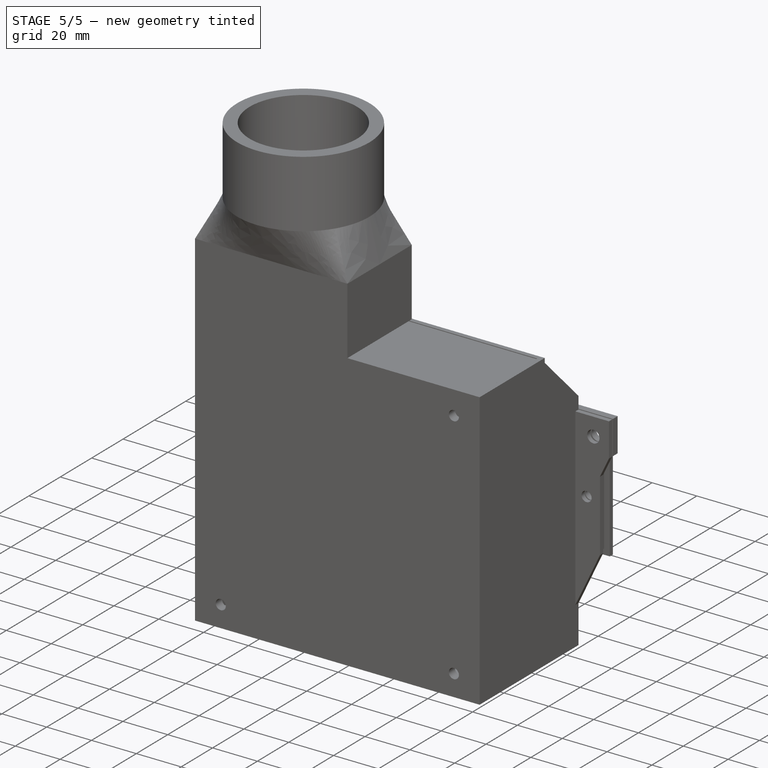
[diagram: stage 5 of 5 — iso view after this stage's code; geometry added in this stage tinted green]
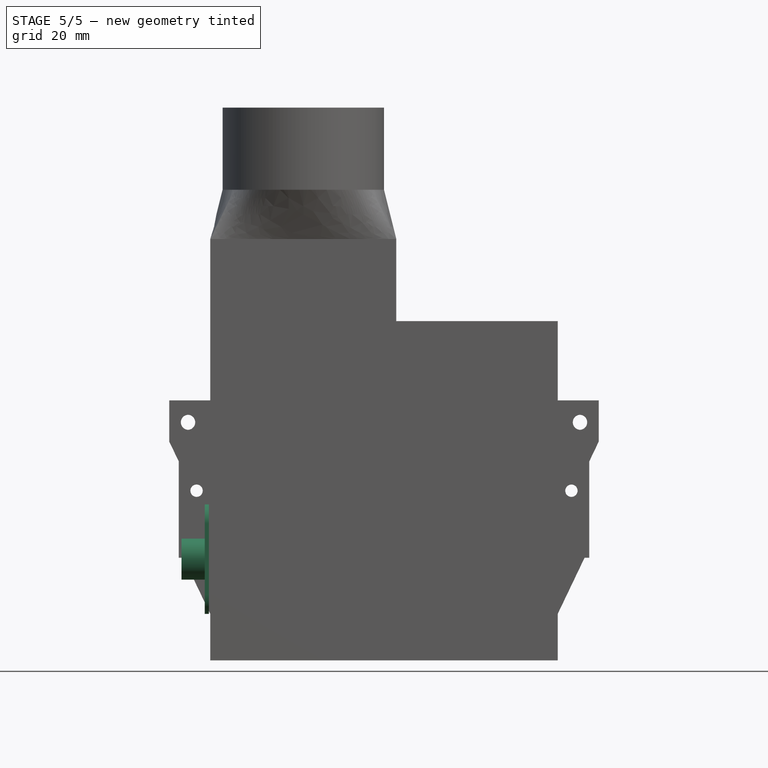
[diagram: stage 5 of 5 — front view after this stage's code; geometry added in this stage tinted green]
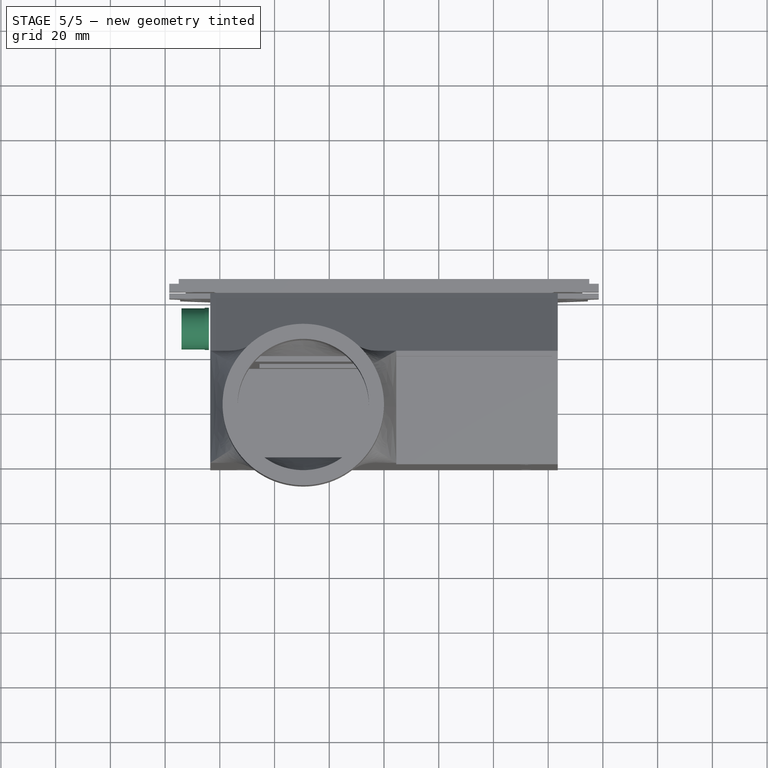
[diagram: stage 5 of 5 — top view after this stage's code; geometry added in this stage tinted green]
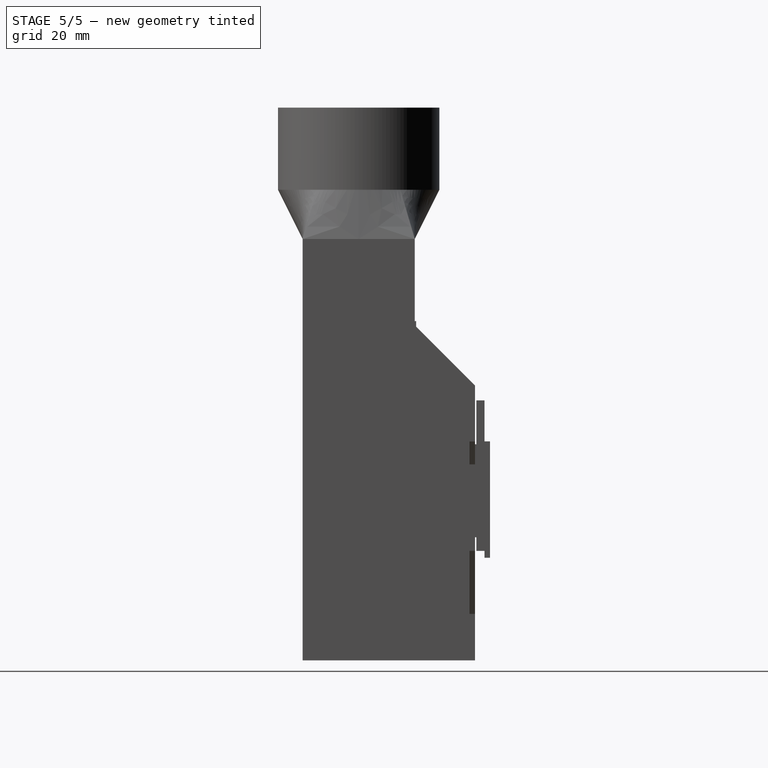
[diagram: stage 5 of 5 — right view after this stage's code; geometry added in this stage tinted green]
FEATURE [Sketcher::SketchObject] Sketch014  label="BowdenSkrewSketch"
  AttachmentOffset = pos=(0,0,-64) rot=(0,0,1;0rad)
  FullyConstrained = true
  MapMode = 5
  Placement = pos=(-64,1.42e-14,-1.42e-14) rot=(0.57735,0.57735,0.57735;2.0944rad)
  Support = -> [YZ_Plane001]
  expr: .Constraints.depth_offset = <<FanWallsSketch>>.Constraints.depth / 2 + 10 mm + 2 mm + 2 mm
  sketch-geometry (3):
    g0: Circle CenterX=30.5 CenterY=46.5 CenterZ=0 NormalX=0 NormalY=0 NormalZ=1 AngleXU=0 Radius=2.25
    g1: Circle CenterX=30.5 CenterY=35 CenterZ=0 NormalX=0 NormalY=0 NormalZ=1 AngleXU=0 Radius=2.25
    g2: Circle CenterX=30.5 CenterY=23.5 CenterZ=0 NormalX=0 NormalY=0 NormalZ=1 AngleXU=0 Radius=2.25
  constraints (9):
    c: Equal(g2,g1)
    c: Equal(g2,g0)
    c: Diameter(g2) = 4.5
    c: Vertical(g0,g1)
    c: Vertical(g1,g2)
    c: DistanceX(g-1,g0) = 30.5  'depth_offset'
    c: DistanceY(g1,g0) = 11.5  'hole_buffer'
    c: DistanceY(g2,g1) = 11.5
    c: DistanceY(g-1,g1) = 35  'height_offset'
FEATURE [Sketcher::SketchObject] Sketch015  label="BowdenBaseSketch"
  AttachmentOffset = pos=(0,0,-64) rot=(0,0,1;0rad)
  FullyConstrained = true
  MapMode = 5
  Placement = pos=(-64,1.42e-14,-1.42e-14) rot=(0.57735,0.57735,0.57735;2.0944rad)
  Support = -> [YZ_Plane004]
  expr: Constraints[10] = <<BowdenSkrewSketch>>.Constraints.depth_offset - 7.5 mm
  expr: Constraints[11] = <<BowdenSkrewSketch>>.Constraints.height_offset - 20 mm
  expr: Constraints[14] = 4.5
  expr: Constraints[17] = <<BowdenSkrewSketch>>.Constraints.hole_buffer
  expr: Constraints[18] = <<BowdenSkrewSketch>>.Constraints.hole_buffer
  expr: Constraints[19] = <<BowdenSkrewSketch>>.Constraints.height_offset
  expr: Constraints[20] = <<BowdenSkrewSketch>>.Constraints.depth_offset
  sketch-geometry (7):
    g0: LineSegment StartX=23 StartY=55 StartZ=0 EndX=38 EndY=55 EndZ=0
    g1: LineSegment StartX=38 StartY=55 StartZ=0 EndX=38 EndY=15 EndZ=0
    g2: LineSegment StartX=38 StartY=15 StartZ=0 EndX=23 EndY=15 EndZ=0
    g3: LineSegment StartX=23 StartY=15 StartZ=0 EndX=23 EndY=55 EndZ=0
    g4: Circle CenterX=30.5 CenterY=46.5 CenterZ=0 NormalX=0 NormalY=0 NormalZ=1 AngleXU=0 Radius=2.25
    g5: Circle CenterX=30.5 CenterY=35 CenterZ=0 NormalX=0 NormalY=0 NormalZ=1 AngleXU=0 Radius=2.25
    g6: Circle CenterX=30.5 CenterY=23.5 CenterZ=0 NormalX=0 NormalY=0 NormalZ=1 AngleXU=0 Radius=2.25
  constraints (21):
    c: Coincident(g0,g1)
    c: Coincident(g1,g2)
    c: Coincident(g2,g3)
    c: Coincident(g3,g0)
    c: Horizontal(g0)
    c: Horizontal(g2)
    c: Vertical(g1)
    c: Vertical(g3)
    c: DistanceY(g1,g1) = 40
    c: DistanceX(g0,g0) = 15
    c: DistanceX(g-1,g0) = 23
    c: DistanceY(g-1,g2) = 15
    c: Equal(g4,g5)
    c: Equal(g4,g6)
    c: Diameter(g4) = 4.5
    c: Vertical(g6,g5)
    c: Vertical(g5,g4)
    c: DistanceY(g5,g4) = 11.5
    c: DistanceY(g6,g5) = 11.5
    c: DistanceY(g-1,g5) = 35
    c: DistanceX(g-1,g5) = 30.5
FEATURE [PartDesign::Pad] Pad007  label="BowdenBase"
  Direction = (1,-2e-16,3e-16)
  Length = 1.5
  Length2 = 10
  Placement = pos=(0,0,0) rot=(1,1,1;2.0944rad)
  Profile = -> Sketch015
  ReferenceAxis = -> Sketch015 [N_Axis]
  Reversed = true
  Type = 0
FEATURE [Sketcher::SketchObject] Sketch016  label="BowdenBrimSketch"
  AttachmentOffset = pos=(0,0,-64) rot=(0,0,1;0rad)
  FullyConstrained = true
  MapMode = 5
  Placement = pos=(-64,1.42e-14,-1.42e-14) rot=(0.57735,0.57735,0.57735;2.0944rad)
  Support = -> [YZ_Plane004]
  expr: Constraints[1] = <<BowdenSkrewSketch>>.Constraints.height_offset
  expr: Constraints[2] = <<BowdenSkrewSketch>>.Constraints.depth_offset
  sketch-geometry (1):
    g0: Circle CenterX=30.5 CenterY=35 CenterZ=0 NormalX=0 NormalY=0 NormalZ=1 AngleXU=0 Radius=7.5
  constraints (3):
    c: Diameter(g0) = 15
    c: DistanceY(g-1,g0) = 35
    c: DistanceX(g-1,g0) = 30.5
FEATURE [PartDesign::Pad] Pad008  label="BowdenBrim"
  BaseFeature = -> Pad007
  Direction = (1,-2e-16,3e-16)
  Length = 10
  Length2 = 10
  Placement = pos=(0,0,0) rot=(1,1,1;2.0944rad)
  Profile = -> Sketch016
  ReferenceAxis = -> Sketch016 [N_Axis]
  Reversed = true
  Type = 0
FEATURE [Sketcher::SketchObject] Sketch018  label="BowdenSkrewSketch001"
  AttachmentOffset = pos=(0,0,-74) rot=(0,0,1;0rad)
  FullyConstrained = true
  MapMode = 5
  Placement = pos=(-74,1.64e-14,-1.64e-14) rot=(0.57735,0.57735,0.57735;2.0944rad)
  Support = -> [YZ_Plane004]
  expr: Constraints[1] = <<BowdenSkrewSketch>>.Constraints.depth_offset
  expr: Constraints[2] = <<BowdenSkrewSketch>>.Constraints.height_offset
  sketch-geometry (1):
    g0: Circle CenterX=30.5 CenterY=35 CenterZ=0 NormalX=0 NormalY=0 NormalZ=1 AngleXU=0 Radius=4.5
  constraints (3):
    c: Diameter(g0) = 9
    c: DistanceX(g-1,g0) = 30.5
    c: DistanceY(g-1,g0) = 35
FEATURE [PartDesign::Hole] Hole  label="BowdenSkrewHole"
  BaseFeature = -> Pad008
  CustomThreadClearance = 0
  Depth = 15
  DepthType = 0
  Diameter = 7.828
  DrillForDepth = false
  DrillPoint = 1
  DrillPointAngle = 118
  HoleCutCountersinkAngle = 90
  HoleCutCustomValues = false
  HoleCutDepth = 0
  HoleCutDiameter = 10
  HoleCutType = 2
  ModelThread = true
  Placement = pos=(0,0,0) rot=(1,1,1;2.0944rad)
  Profile = -> Sketch018
  Reversed = true
  Tapered = false
  TaperedAngle = 90
  ThreadClass = 0
  ThreadDepth = 15
  ThreadDepthType = 0
  ThreadDirection = 0
  ThreadFit = 0
  ThreadSize = 17
  ThreadType = 1
  Threaded = true
  UseCustomThreadClearance = false
FEATURE [PartDesign::Fillet] Fillet001  label="BaseFillet"
  Base = -> Hole [Edge17,Edge19,Edge2,Edge1]
  BaseFeature = -> Hole
  Placement = pos=(0,0,0) rot=(1,1,1;2.0944rad)
  Radius = 7
  SupportTransform = false
  UseAllEdges = false
FEATURE [Sketcher::SketchObject] Sketch024
  ExternalGeometry = -> [Pocket006]
  FullyConstrained = true
  MapMode = 5
  Placement = pos=(0,43,1.08e-14) rot=(1,0,0;1.5708rad)
  Support = -> [Pocket006]
  sketch-geometry (8):
    g0: LineSegment StartX=-60.5 StartY=76 StartZ=0 EndX=60.5 EndY=76 EndZ=0
    g1: LineSegment StartX=60.5 StartY=76 StartZ=0 EndX=60.5 EndY=44 EndZ=0
    g2: LineSegment StartX=60.5 StartY=44 StartZ=0 EndX=-60.5 EndY=44 EndZ=0
    g3: LineSegment StartX=-60.5 StartY=44 StartZ=0 EndX=-60.5 EndY=76 EndZ=0
    g4: LineSegment StartX=-61.5 StartY=77 StartZ=0 EndX=61.5 EndY=77 EndZ=0
    g5: LineSegment StartX=61.5 StartY=77 StartZ=0 EndX=61.5 EndY=43 EndZ=0
    g6: LineSegment StartX=61.5 StartY=43 StartZ=0 EndX=-61.5 EndY=43 EndZ=0
    g7: LineSegment StartX=-61.5 StartY=43 StartZ=0 EndX=-61.5 EndY=77 EndZ=0
  constraints (22):
    c: Coincident(g0,g1)
    c: Coincident(g1,g2)
    c: Coincident(g2,g3)
    c: Coincident(g3,g0)
    c: Horizontal(g0)
    c: Horizontal(g2)
    c: Vertical(g1)
    c: Vertical(g3)
    c: Coincident(g0,g-3)
    c: Coincident(g1,g-5)
    c: Coincident(g4,g5)
    c: Coincident(g5,g6)
    c: Coincident(g6,g7)
    c: Coincident(g7,g4)
    c: Horizontal(g4)
    c: Horizontal(g6)
    c: Vertical(g5)
    c: Vertical(g7)
    c: DistanceY(g0,g4) = 1
    c: DistanceX(g4,g0) = 1
    c: DistanceX(g1,g5) = 1
    c: DistanceY(g5,g1) = 1
FEATURE [PartDesign::Pad] Pad010
  BaseFeature = -> Pocket006
  Direction = (0,-1,-2e-16)
  Length = 3
  Length2 = 10
  Placement = pos=(0,0,0) rot=(1,0,0;1.5708rad)
  Profile = -> Sketch024
  ReferenceAxis = -> Sketch024 [N_Axis]
  Type = 0
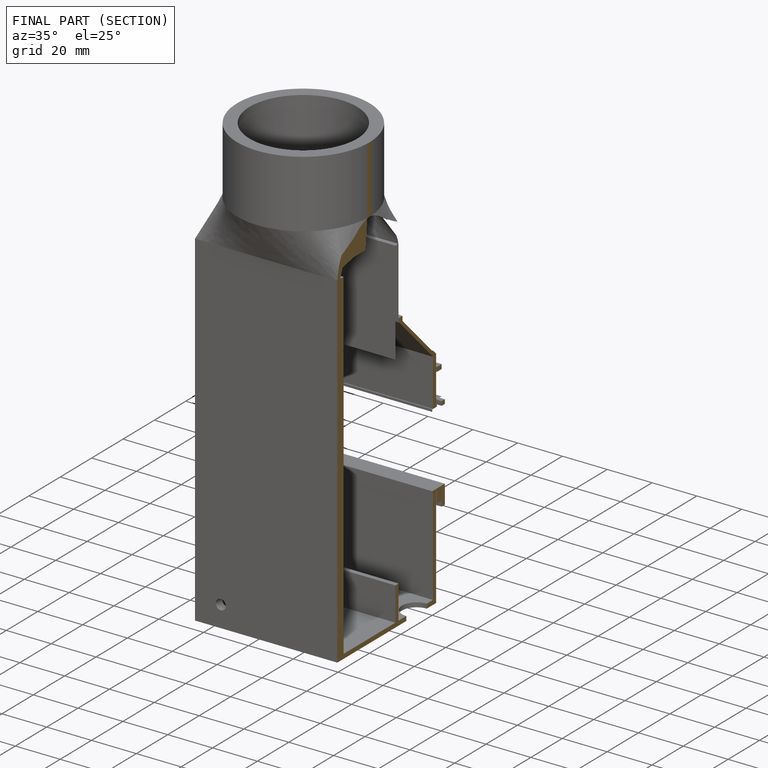
[diagram: finished part — half-section view (interior)]
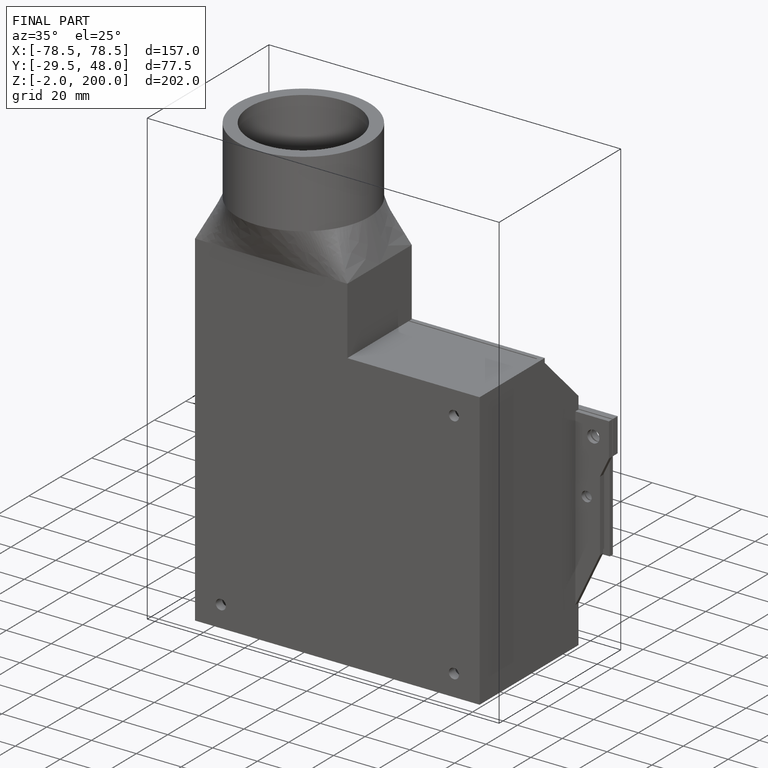
[diagram: finished part — iso view with bounding-box wireframe]
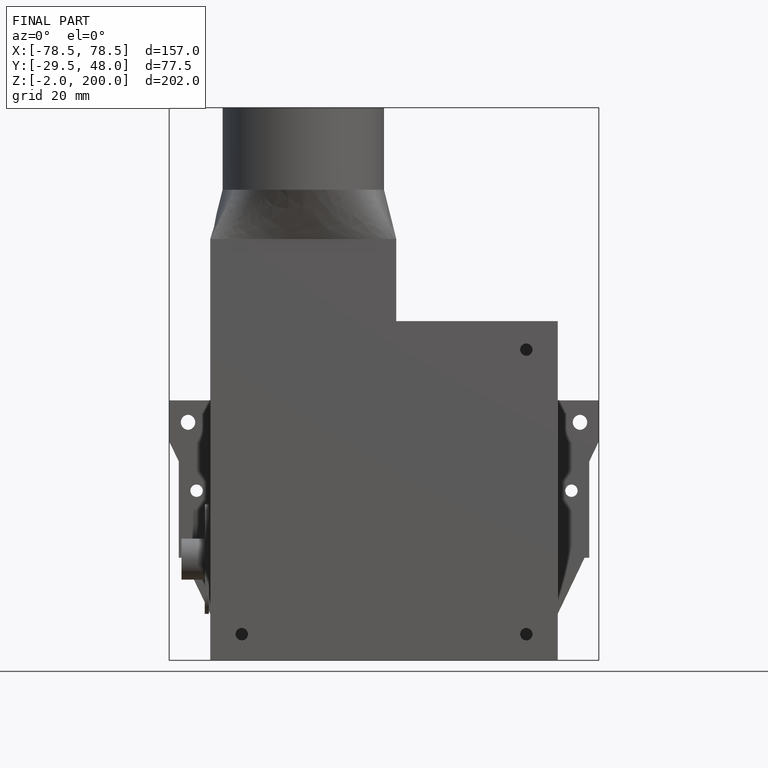
[diagram: finished part — front view with bounding-box wireframe]
